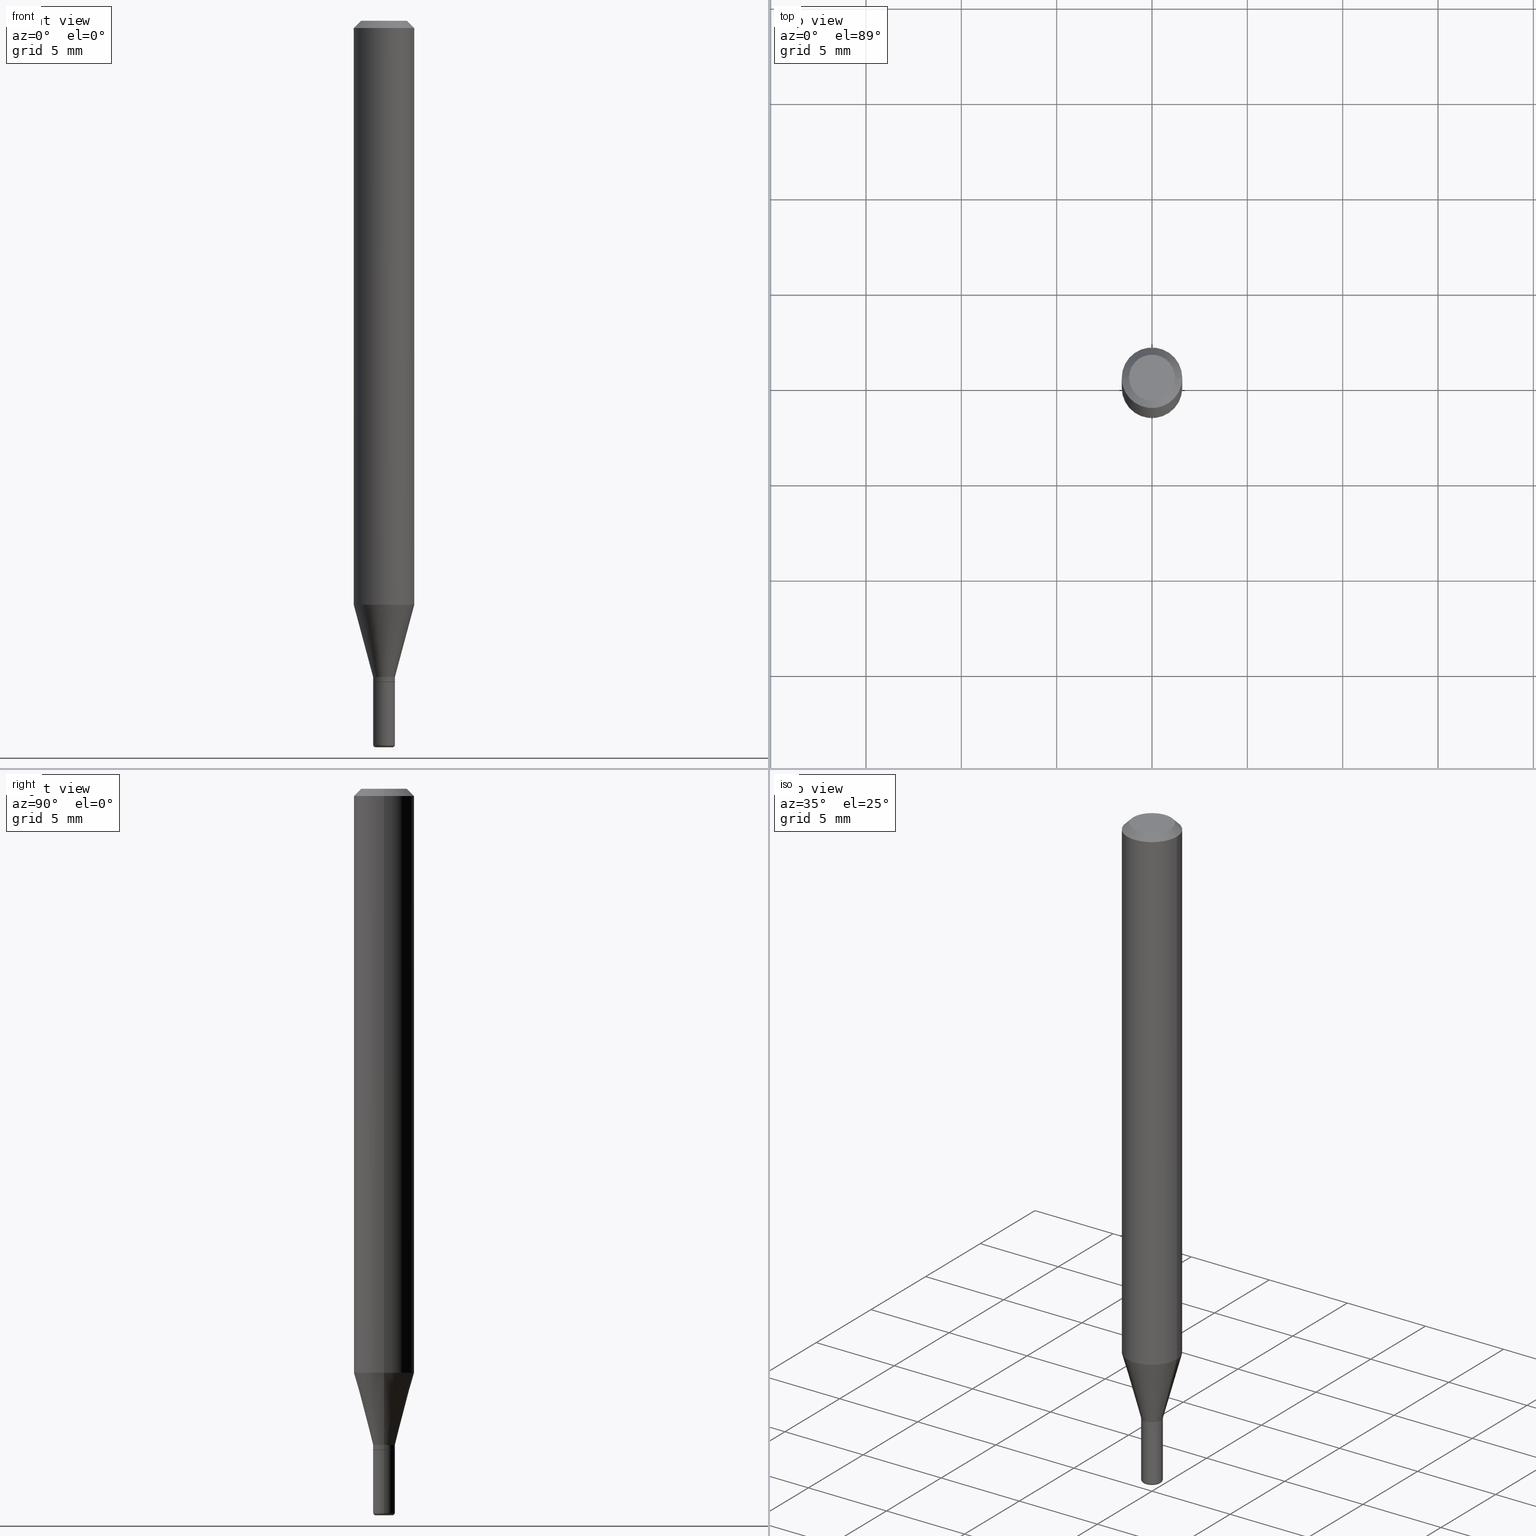
[diagram: canonical four-view strip — front | top / right | iso, engineering-drawing reading convention]
A machine part, canonical four-view strip (front | top / right | iso — engineering-drawing reading convention). The complete STEP part file that produces these views, byte-faithful:
ISO-10303-21;
HEADER;
FILE_DESCRIPTION (( 'STEP AP203' ),
    '1' );
FILE_NAME ('09003.STEP',
    '2024-02-29T21:11:43',
    ( '' ),
    ( '' ),
    'SwSTEP 2.0',
    'SolidWorks 2023',
    '' );
FILE_SCHEMA (( 'CONFIG_CONTROL_DESIGN' ));
ENDSEC;

DATA;
#1 = CONICAL_SURFACE ( 'NONE', #313, 0.02200000000000008546, 0.7853981633972775267 ) ;
#2 = CARTESIAN_POINT ( 'NONE',  ( -0.01749999999999999820, -5.086384757765590495E-15, -1.500000000000000444 ) ) ;
#3 = VERTEX_POINT ( 'NONE', #460 ) ;
#4 = CARTESIAN_POINT ( 'NONE',  ( 0.000000000000000000, 0.000000000000000000, 0.000000000000000000 ) ) ;
#5 = DIRECTION ( 'NONE',  ( -2.445468806185136597E-29, 3.491481338843145583E-15, 1.000000000000000000 ) ) ;
#6 = EDGE_CURVE ( 'NONE', #383, #515, #139, .T. ) ;
#7 = FACE_OUTER_BOUND ( 'NONE', #263, .T. ) ;
#8 = AXIS2_PLACEMENT_3D ( 'NONE', #187, #108, #452 ) ;
#9 = CC_DESIGN_SECURITY_CLASSIFICATION ( #237, ( #419 ) ) ;
#10 = ORIENTED_EDGE ( 'NONE', *, *, #31, .T. ) ;
#11 = DIRECTION ( 'NONE',  ( 1.000000000000000000, -6.982962677686266711E-15, 0.000000000000000000 ) ) ;
#12 = COORDINATED_UNIVERSAL_TIME_OFFSET ( 5, 0, .BEHIND. ) ;
#13 = CYLINDRICAL_SURFACE ( 'NONE', #184, 0.02250000000000008590 ) ;
#14 = ADVANCED_FACE ( 'NONE', ( #420 ), #1, .T. ) ;
#15 = CALENDAR_DATE ( 2024, 29, 2 ) ;
#16 = ORIENTED_EDGE ( 'NONE', *, *, #75, .T. ) ;
#17 = EDGE_CURVE ( 'NONE', #475, #62, #504, .T. ) ;
#18 = CIRCLE ( 'NONE', #403, 0.06250000000000000000 ) ;
#19 = CARTESIAN_POINT ( 'NONE',  ( 3.668203209277706016E-29, -5.237222008264719754E-15, -1.500000000000000444 ) ) ;
#20 = ORIENTED_EDGE ( 'NONE', *, *, #478, .T. ) ;
#21 = LENGTH_MEASURE_WITH_UNIT ( LENGTH_MEASURE( 0.02539999999999999897 ), #503 );
#22 = ORIENTED_EDGE ( 'NONE', *, *, #302, .F. ) ;
#23 = EDGE_CURVE ( 'NONE', #33, #110, #342, .T. ) ;
#24 = CC_DESIGN_DATE_AND_TIME_ASSIGNMENT ( #239, #388, ( #237 ) ) ;
#25 = ORIENTED_EDGE ( 'NONE', *, *, #302, .T. ) ;
#26 = APPROVAL_STATUS ( 'not_yet_approved' ) ;
#27 = CIRCLE ( 'NONE', #319, 0.005000000000000181383 ) ;
#28 = LOCAL_TIME ( 16, 11, 43.00000000000000000, #374 ) ;
#29 = CARTESIAN_POINT ( 'NONE',  ( 3.668203209277632395E-31, -5.237222008264614861E-17, -0.01499999999999970281 ) ) ;
#30 = CARTESIAN_POINT ( 'NONE',  ( 0.02250000000000008937, -4.921242947099413409E-15, -1.364499999999999824 ) ) ;
#31 = EDGE_CURVE ( 'NONE', #309, #132, #282, .T. ) ;
#32 = DIRECTION ( 'NONE',  ( -2.445468806185136597E-29, 3.491481338843145583E-15, 1.000000000000000000 ) ) ;
#33 = VERTEX_POINT ( 'NONE', #296 ) ;
#34 = CALENDAR_DATE ( 2024, 29, 2 ) ;
#35 = ORIENTED_EDGE ( 'NONE', *, *, #415, .T. ) ;
#36 = ORIENTED_EDGE ( 'NONE', *, *, #208, .T. ) ;
#37 = CC_DESIGN_PERSON_AND_ORGANIZATION_ASSIGNMENT ( #343, #54, ( #413 ) ) ;
#38 = DIRECTION ( 'NONE',  ( -2.445468806185136597E-29, 3.491481338843145583E-15, 1.000000000000000000 ) ) ;
#39 = ORIENTED_EDGE ( 'NONE', *, *, #264, .T. ) ;
#40 = AXIS2_PLACEMENT_3D ( 'NONE', #273, #385, #465 ) ;
#41 = VECTOR ( 'NONE', #85, 39.37007874015748143 ) ;
#42 = CARTESIAN_POINT ( 'NONE',  ( 0.02250000000000008590, -1.571166602479415828E-16, 1.097139774554089687E-30 ) ) ;
#43 = DIRECTION ( 'NONE',  ( 1.000000000000000000, -6.982962677686266711E-15, 4.876176775795935793E-29 ) ) ;
#44 = ADVANCED_FACE ( 'NONE', ( #100 ), #301, .T. ) ;
#45 = DIRECTION ( 'NONE',  ( -2.445468806185136597E-29, 3.491481338843145583E-15, 1.000000000000000000 ) ) ;
#46 = CARTESIAN_POINT ( 'NONE',  ( 3.313610232380861411E-29, -4.730957214132463998E-15, -1.355000000000000426 ) ) ;
#47 = ORIENTED_EDGE ( 'NONE', *, *, #232, .T. ) ;
#48 = CARTESIAN_POINT ( 'NONE',  ( 0.000000000000000000, 0.000000000000000000, 0.000000000000000000 ) ) ;
#49 = AXIS2_PLACEMENT_3D ( 'NONE', #137, #339, #417 ) ;
#50 = DIRECTION ( 'NONE',  ( -2.445468806185136597E-29, 3.491481338843145583E-15, 1.000000000000000000 ) ) ;
#51 = MECHANICAL_CONTEXT ( 'NONE', #230, 'mechanical' ) ;
#52 = ORIENTED_EDGE ( 'NONE', *, *, #23, .T. ) ;
#53 = ADVANCED_FACE ( 'NONE', ( #414 ), #362, .T. ) ;
#54 = PERSON_AND_ORGANIZATION_ROLE ( 'design_owner' ) ;
#55 = DIRECTION ( 'NONE',  ( 1.000000000000000000, -6.982962677686265922E-15, 4.876176775795935793E-29 ) ) ;
#56 = DIRECTION ( 'NONE',  ( 1.000000000000000000, -6.982962677686255667E-15, 4.883557194083108977E-29 ) ) ;
#57 = CIRCLE ( 'NONE', #274, 0.02250000000000017958 ) ;
#58 = VECTOR ( 'NONE', #61, 39.37007874015748854 ) ;
#59 = DIRECTION ( 'NONE',  ( 1.000000000000000000, -6.982962677686266711E-15, 4.852736867747365086E-29 ) ) ;
#60 = ADVANCED_FACE ( 'NONE', ( #373 ), #13, .T. ) ;
#61 = DIRECTION ( 'NONE',  ( -0.2588190451025206840, 5.211531920934545520E-15, 0.9659258262890682012 ) ) ;
#62 = VERTEX_POINT ( 'NONE', #337 ) ;
#63 = DIRECTION ( 'NONE',  ( -2.445468806185136597E-29, 3.491481338843145583E-15, 1.000000000000000000 ) ) ;
#64 = ORIENTED_EDGE ( 'NONE', *, *, #425, .F. ) ;
#65 = CARTESIAN_POINT ( 'NONE',  ( -0.02200000000000008546, -4.609552625653671101E-15, -1.364999999999999991 ) ) ;
#66 = FACE_OUTER_BOUND ( 'NONE', #510, .T. ) ;
#67 = APPROVAL_STATUS ( 'not_yet_approved' ) ;
#68 = AXIS2_PLACEMENT_3D ( 'NONE', #180, #455, #103 ) ;
#69 = TOROIDAL_SURFACE ( 'NONE', #437, 0.01749999999999999820, 0.005000000000000179648 ) ;
#70 = EDGE_CURVE ( 'NONE', #132, #309, #287, .T. ) ;
#71 = CARTESIAN_POINT ( 'NONE',  ( 1.571166602479743698E-16, 0.02249999999999523215, -1.364999999999999991 ) ) ;
#72 = ORIENTED_EDGE ( 'NONE', *, *, #121, .T. ) ;
#73 = DIMENSIONAL_EXPONENTS ( 1.000000000000000000, 0.000000000000000000, 0.000000000000000000, 0.000000000000000000, 0.000000000000000000, 0.000000000000000000, 0.000000000000000000 ) ;
#74 = CYLINDRICAL_SURFACE ( 'NONE', #77, 0.06250000000000000000 ) ;
#75 = EDGE_CURVE ( 'NONE', #110, #445, #295, .T. ) ;
#76 = ORIENTED_EDGE ( 'NONE', *, *, #6, .F. ) ;
#77 = AXIS2_PLACEMENT_3D ( 'NONE', #277, #241, #426 ) ;
#78 = CONICAL_SURFACE ( 'NONE', #117, 0.02250000000000007896, 0.2617993877991494078 ) ;
#79 = PERSON_AND_ORGANIZATION ( #246, #459 ) ;
#80 = EDGE_LOOP ( 'NONE', ( #206, #145, #36, #234 ) ) ;
#81 = CC_DESIGN_PERSON_AND_ORGANIZATION_ASSIGNMENT ( #508, #192, ( #419 ) ) ;
#82 = CARTESIAN_POINT ( 'NONE',  ( 0.02250000000000017958, -5.376881261818446351E-15, -1.495000000000000329 ) ) ;
#83 = ORIENTED_EDGE ( 'NONE', *, *, #97, .T. ) ;
#84 = DIRECTION ( 'NONE',  ( -2.445468806185136597E-29, 3.491481338843145583E-15, 1.000000000000000000 ) ) ;
#85 = DIRECTION ( 'NONE',  ( -0.7071067811865479058, 2.468850131082261005E-15, -0.7071067811865471286 ) ) ;
#86 = CONICAL_SURFACE ( 'NONE', #225, 0.02200000000000008546, 0.7853981633972775267 ) ;
#87 = CC_DESIGN_PERSON_AND_ORGANIZATION_ASSIGNMENT ( #79, #315, ( #419 ) ) ;
#88 = FACE_OUTER_BOUND ( 'NONE', #395, .T. ) ;
#89 = CARTESIAN_POINT ( 'NONE',  ( -6.680649051745406845E-45, 9.538196290434862081E-31, 2.731847993664263218E-16 ) ) ;
#90 = ORIENTED_EDGE ( 'NONE', *, *, #92, .T. ) ;
#91 = FACE_OUTER_BOUND ( 'NONE', #229, .T. ) ;
#92 = EDGE_CURVE ( 'NONE', #372, #164, #218, .T. ) ;
#93 = LINE ( 'NONE', #408, #369 ) ;
#94 = CARTESIAN_POINT ( 'NONE',  ( -0.02250000000000008937, 1.598721155460231769E-16, -1.106760395307358334E-30 ) ) ;
#95 = CIRCLE ( 'NONE', #329, 0.04750000000000000749 ) ;
#96 = LOCAL_TIME ( 16, 11, 43.00000000000000000, #350 ) ;
#97 = EDGE_CURVE ( 'NONE', #309, #293, #500, .T. ) ;
#98 = ORIENTED_EDGE ( 'NONE', *, *, #232, .F. ) ;
#99 = CYLINDRICAL_SURFACE ( 'NONE', #49, 0.02250000000000008590 ) ;
#100 = FACE_OUTER_BOUND ( 'NONE', #122, .T. ) ;
#101 = PRODUCT_DEFINITION_SHAPE ( 'NONE', 'NONE',  #288 ) ;
#102 = ADVANCED_BREP_SHAPE_REPRESENTATION ( '09003', ( #464, #123, #125 ), #267 ) ;
#103 = DIRECTION ( 'NONE',  ( 1.000000000000000000, -6.982962677686269077E-15, 0.000000000000000000 ) ) ;
#104 = ADVANCED_FACE ( 'NONE', ( #505 ), #86, .T. ) ;
#105 = DIRECTION ( 'NONE',  ( -2.445468806185136597E-29, 3.491481338843145583E-15, 1.000000000000000000 ) ) ;
#106 = VECTOR ( 'NONE', #466, 39.37007874015748143 ) ;
#107 = LOCAL_TIME ( 16, 11, 43.00000000000000000, #12 ) ;
#108 = DIRECTION ( 'NONE',  ( -2.445468806185136597E-29, 3.491481338843145583E-15, 1.000000000000000000 ) ) ;
#109 =( NAMED_UNIT ( * ) SI_UNIT ( $, .STERADIAN. ) SOLID_ANGLE_UNIT ( ) );
#110 = VERTEX_POINT ( 'NONE', #195 ) ;
#111 = CARTESIAN_POINT ( 'NONE',  ( 3.668203209277706016E-29, -5.237222008264719754E-15, -1.500000000000000444 ) ) ;
#112 = DATE_AND_TIME ( #205, #107 ) ;
#113 = ADVANCED_FACE ( 'NONE', ( #235 ), #428, .F. ) ;
#114 = FACE_OUTER_BOUND ( 'NONE', #262, .T. ) ;
#115 = SECURITY_CLASSIFICATION_LEVEL ( 'unclassified' ) ;
#116 = AXIS2_PLACEMENT_3D ( 'NONE', #390, #199, #507 ) ;
#117 = AXIS2_PLACEMENT_3D ( 'NONE', #46, #215, #363 ) ;
#118 = DIRECTION ( 'NONE',  ( -1.000000000000000000, 6.982962677686265922E-15, -4.876176775795935793E-29 ) ) ;
#119 = DIRECTION ( 'NONE',  ( 1.000000000000000000, -6.982962677686255667E-15, 0.000000000000000000 ) ) ;
#120 = ORIENTED_EDGE ( 'NONE', *, *, #70, .T. ) ;
#121 = EDGE_CURVE ( 'NONE', #515, #257, #158, .T. ) ;
#122 = EDGE_LOOP ( 'NONE', ( #270, #35, #317, #399 ) ) ;
#123 = MANIFOLD_SOLID_BREP ( 'Body-Move/Copy2[2]', #467 ) ;
#124 = AXIS2_PLACEMENT_3D ( 'NONE', #238, #314, #472 ) ;
#125 = AXIS2_PLACEMENT_3D ( 'NONE', #142, #380, #501 ) ;
#126 = ORIENTED_EDGE ( 'NONE', *, *, #400, .T. ) ;
#127 = CARTESIAN_POINT ( 'NONE',  ( 3.655975865246779122E-29, -5.219764601570503141E-15, -1.495000000000000107 ) ) ;
#128 = DIRECTION ( 'NONE',  ( -2.445468806185136877E-29, 3.491481338843145188E-15, 1.000000000000000000 ) ) ;
#129 = LINE ( 'NONE', #286, #283 ) ;
#130 = AXIS2_PLACEMENT_3D ( 'NONE', #48, #444, #360 ) ;
#131 = LINE ( 'NONE', #289, #393 ) ;
#132 = VERTEX_POINT ( 'NONE', #271 ) ;
#133 = EDGE_CURVE ( 'NONE', #515, #383, #375, .T. ) ;
#134 = FACE_OUTER_BOUND ( 'NONE', #284, .T. ) ;
#135 = ORIENTED_EDGE ( 'NONE', *, *, #499, .T. ) ;
#136 = CARTESIAN_POINT ( 'NONE',  ( -0.06250000000000000000, -1.686967792252668322E-15, -0.01499999999999970281 ) ) ;
#137 = CARTESIAN_POINT ( 'NONE',  ( 0.000000000000000000, 0.000000000000000000, 0.000000000000000000 ) ) ;
#138 = DIRECTION ( 'NONE',  ( 1.000000000000000000, -6.982962677686250144E-15, 0.000000000000000000 ) ) ;
#139 = CIRCLE ( 'NONE', #244, 0.01749999999999999820 ) ;
#140 = CC_DESIGN_APPROVAL ( #416, ( #419 ) ) ;
#141 = DIRECTION ( 'NONE',  ( -2.445468806185136597E-29, 3.491481338843145583E-15, 1.000000000000000000 ) ) ;
#142 = CARTESIAN_POINT ( 'NONE',  ( 0.000000000000000000, 0.000000000000000000, 0.000000000000000000 ) ) ;
#143 = ADVANCED_FACE ( 'NONE', ( #114 ), #74, .T. ) ;
#144 = DIRECTION ( 'NONE',  ( -2.445468806185136597E-29, 3.491481338843145583E-15, 1.000000000000000000 ) ) ;
#145 = ORIENTED_EDGE ( 'NONE', *, *, #202, .T. ) ;
#146 =( CONVERSION_BASED_UNIT ( 'INCH', #21 ) LENGTH_UNIT ( ) NAMED_UNIT ( #73 ) );
#147 = DIRECTION ( 'NONE',  ( -2.445468806185136877E-29, 3.491481338843145188E-15, 1.000000000000000000 ) ) ;
#148 = APPLICATION_PROTOCOL_DEFINITION ( 'international standard', 'config_control_design', 1994, #401 ) ;
#149 = CIRCLE ( 'NONE', #354, 0.06250000000000000000 ) ;
#150 = AXIS2_PLACEMENT_3D ( 'NONE', #367, #330, #292 ) ;
#151 = CARTESIAN_POINT ( 'NONE',  ( 3.338064920442711836E-29, -4.765872027520893280E-15, -1.364999999999999991 ) ) ;
#152 = EDGE_CURVE ( 'NONE', #257, #33, #57, .T. ) ;
#153 = SHAPE_DEFINITION_REPRESENTATION ( #101, #102 ) ;
#154 = DIRECTION ( 'NONE',  ( 1.000000000000000000, -6.982962677686250144E-15, 0.000000000000000000 ) ) ;
#155 = DIRECTION ( 'NONE',  ( -2.445468806185136597E-29, 3.491481338843145583E-15, 1.000000000000000000 ) ) ;
#156 = DATE_AND_TIME ( #278, #96 ) ;
#157 = VECTOR ( 'NONE', #159, 39.37007874015748143 ) ;
#158 = CIRCLE ( 'NONE', #124, 0.005000000000000181383 ) ;
#159 = DIRECTION ( 'NONE',  ( 0.7071067811864267805, -2.468850131080992517E-15, 0.7071067811866682540 ) ) ;
#160 = APPROVAL_DATE_TIME ( #156, #177 ) ;
#161 = ORIENTED_EDGE ( 'NONE', *, *, #400, .F. ) ;
#162 = EDGE_CURVE ( 'NONE', #487, #372, #310, .T. ) ;
#163 = CARTESIAN_POINT ( 'NONE',  ( 0.02249999999999999917, -4.922988687768834913E-15, -1.364999999999999991 ) ) ;
#164 = VERTEX_POINT ( 'NONE', #30 ) ;
#165 = ORIENTED_EDGE ( 'NONE', *, *, #415, .F. ) ;
#166 = DIRECTION ( 'NONE',  ( 1.000000000000000000, -6.982962677686269077E-15, 0.000000000000000000 ) ) ;
#167 = VECTOR ( 'NONE', #366, 39.37007874015748143 ) ;
#168 = ADVANCED_FACE ( 'NONE', ( #509 ), #349, .F. ) ;
#169 = DIRECTION ( 'NONE',  ( 1.000000000000000000, -6.982962677686255667E-15, 4.883557194083108977E-29 ) ) ;
#170 = ORIENTED_EDGE ( 'NONE', *, *, #499, .F. ) ;
#171 = FACE_OUTER_BOUND ( 'NONE', #361, .T. ) ;
#172 = CYLINDRICAL_SURFACE ( 'NONE', #193, 0.06250000000000000000 ) ;
#173 = AXIS2_PLACEMENT_3D ( 'NONE', #307, #50, #59 ) ;
#174 = AXIS2_PLACEMENT_3D ( 'NONE', #492, #186, #259 ) ;
#175 = DIRECTION ( 'NONE',  ( -2.445468806185136597E-29, 3.491481338843145583E-15, 1.000000000000000000 ) ) ;
#176 = ORIENTED_EDGE ( 'NONE', *, *, #396, .T. ) ;
#177 = APPROVAL ( #67, 'UNSPECIFIED' ) ;
#178 = CARTESIAN_POINT ( 'NONE',  ( 0.06250000000000000000, -4.646176951478207651E-15, -1.205717967697245596 ) ) ;
#179 = DIRECTION ( 'NONE',  ( 0.7071067811865479058, -7.319954787623257623E-15, -0.7071067811865471286 ) ) ;
#180 = CARTESIAN_POINT ( 'NONE',  ( 3.338064920442711836E-29, -4.765872027520893280E-15, -1.364999999999999991 ) ) ;
#181 = LINE ( 'NONE', #269, #258 ) ;
#182 = ORIENTED_EDGE ( 'NONE', *, *, #446, .F. ) ;
#183 = CLOSED_SHELL ( 'NONE', ( #473, #253, #113, #44, #379, #433 ) ) ;
#184 = AXIS2_PLACEMENT_3D ( 'NONE', #268, #63, #55 ) ;
#185 = APPROVAL_PERSON_ORGANIZATION ( #514, #177, #391 ) ;
#186 = DIRECTION ( 'NONE',  ( -2.438088387897960049E-29, 3.491481338843145188E-15, 1.000000000000000000 ) ) ;
#187 = CARTESIAN_POINT ( 'NONE',  ( 0.000000000000000000, 0.000000000000000000, 0.000000000000000000 ) ) ;
#188 = DIRECTION ( 'NONE',  ( -2.445468806185136597E-29, 3.491481338843145583E-15, 1.000000000000000000 ) ) ;
#189 = ORIENTED_EDGE ( 'NONE', *, *, #162, .T. ) ;
#190 = EDGE_CURVE ( 'NONE', #255, #463, #486, .T. ) ;
#191 = ORIENTED_EDGE ( 'NONE', *, *, #17, .T. ) ;
#192 = PERSON_AND_ORGANIZATION_ROLE ( 'design_supplier' ) ;
#193 = AXIS2_PLACEMENT_3D ( 'NONE', #4, #38, #43 ) ;
#194 = AXIS2_PLACEMENT_3D ( 'NONE', #209, #484, #332 ) ;
#195 = CARTESIAN_POINT ( 'NONE',  ( -0.02249999999999999917, -4.832946198999675921E-15, -1.364999999999999991 ) ) ;
#196 = DIRECTION ( 'NONE',  ( 1.000000000000000000, -6.982962677686261977E-15, 0.000000000000000000 ) ) ;
#197 = APPROVAL_DATE_TIME ( #427, #416 ) ;
#198 = ORIENTED_EDGE ( 'NONE', *, *, #396, .F. ) ;
#199 = DIRECTION ( 'NONE',  ( -2.445468806185136597E-29, 3.491481338843145583E-15, 1.000000000000000000 ) ) ;
#200 = DATE_TIME_ROLE ( 'creation_date' ) ;
#201 = ORIENTED_EDGE ( 'NONE', *, *, #327, .F. ) ;
#202 = EDGE_CURVE ( 'NONE', #487, #290, #376, .T. ) ;
#203 = AXIS2_PLACEMENT_3D ( 'NONE', #481, #220, #442 ) ;
#204 = PRODUCT_RELATED_PRODUCT_CATEGORY ( 'detail', '', ( #413 ) ) ;
#205 = CALENDAR_DATE ( 2024, 29, 2 ) ;
#206 = ORIENTED_EDGE ( 'NONE', *, *, #162, .F. ) ;
#207 = EDGE_LOOP ( 'NONE', ( #64, #90, #47, #243 ) ) ;
#208 = EDGE_CURVE ( 'NONE', #290, #164, #353, .T. ) ;
#209 = CARTESIAN_POINT ( 'NONE',  ( 3.668203209277632395E-31, -5.237222008264614861E-17, -0.01499999999999970281 ) ) ;
#210 = EDGE_LOOP ( 'NONE', ( #201, #440 ) ) ;
#211 = AXIS2_PLACEMENT_3D ( 'NONE', #404, #482, #166 ) ;
#212 = CARTESIAN_POINT ( 'NONE',  ( -0.01749999999999999820, -5.095419622812485892E-15, -1.495000000000000107 ) ) ;
#213 = DIRECTION ( 'NONE',  ( -2.445468806185136597E-29, 3.491481338843145583E-15, 1.000000000000000000 ) ) ;
#214 = DIRECTION ( 'NONE',  ( 1.000000000000000000, -6.982962677686255667E-15, 0.000000000000000000 ) ) ;
#215 = DIRECTION ( 'NONE',  ( -2.445468806185136597E-29, 3.491481338843145583E-15, 1.000000000000000000 ) ) ;
#216 = EDGE_CURVE ( 'NONE', #463, #255, #149, .T. ) ;
#217 = CC_DESIGN_PERSON_AND_ORGANIZATION_ASSIGNMENT ( #312, #355, ( #237 ) ) ;
#218 = CIRCLE ( 'NONE', #303, 0.02250000000000008937 ) ;
#219 = EDGE_LOOP ( 'NONE', ( #435, #120, #83, #358 ) ) ;
#220 = DIRECTION ( 'NONE',  ( -2.445468806185136597E-29, 3.491481338843145583E-15, 1.000000000000000000 ) ) ;
#221 = DIRECTION ( 'NONE',  ( 1.000000000000000000, -6.982962677686286432E-15, 0.000000000000000000 ) ) ;
#222 = APPROVAL_ROLE ( '' ) ;
#223 = DIRECTION ( 'NONE',  ( -2.445468806185136597E-29, 3.491481338843145583E-15, 1.000000000000000000 ) ) ;
#224 = CARTESIAN_POINT ( 'NONE',  ( 3.313610232380861411E-29, -4.730957214132463998E-15, -1.355000000000000426 ) ) ;
#225 = AXIS2_PLACEMENT_3D ( 'NONE', #151, #32, #196 ) ;
#226 = AXIS2_PLACEMENT_3D ( 'NONE', #261, #144, #280 ) ;
#227 = CARTESIAN_POINT ( 'NONE',  ( 0.01749999999999999820, -5.359423855124228949E-15, -1.500000000000000444 ) ) ;
#228 = CC_DESIGN_PERSON_AND_ORGANIZATION_ASSIGNMENT ( #494, #462, ( #288 ) ) ;
#229 = EDGE_LOOP ( 'NONE', ( #470, #52, #318, #359 ) ) ;
#230 = APPLICATION_CONTEXT ( 'configuration controlled 3d designs of mechanical parts and assemblies' ) ;
#231 = CARTESIAN_POINT ( 'NONE',  ( -0.02200000000000008546, -4.606903398479559111E-15, -1.364999999999999991 ) ) ;
#232 = EDGE_CURVE ( 'NONE', #164, #309, #405, .T. ) ;
#233 = ORIENTED_EDGE ( 'NONE', *, *, #17, .F. ) ;
#234 = ORIENTED_EDGE ( 'NONE', *, *, #92, .F. ) ;
#235 = FACE_OUTER_BOUND ( 'NONE', #410, .T. ) ;
#236 = AXIS2_PLACEMENT_3D ( 'NONE', #254, #406, #169 ) ;
#237 = SECURITY_CLASSIFICATION ( '', '', #115 ) ;
#238 = CARTESIAN_POINT ( 'NONE',  ( 0.01749999999999999820, -5.341966448430012335E-15, -1.495000000000000107 ) ) ;
#239 = DATE_AND_TIME ( #506, #430 ) ;
#240 = ORIENTED_EDGE ( 'NONE', *, *, #216, .T. ) ;
#241 = DIRECTION ( 'NONE',  ( -2.445468806185136597E-29, 3.491481338843145583E-15, 1.000000000000000000 ) ) ;
#242 = ORIENTED_EDGE ( 'NONE', *, *, #364, .F. ) ;
#243 = ORIENTED_EDGE ( 'NONE', *, *, #70, .F. ) ;
#244 = AXIS2_PLACEMENT_3D ( 'NONE', #19, #188, #138 ) ;
#245 = CC_DESIGN_APPROVAL ( #305, ( #288 ) ) ;
#246 = PERSON ( 'UNSPECIFIED', 'UNSPECIFIED', 'UNSPECIFIED', ('UNSPECIFIED'), ('UNSPECIFIED'), ('UNSPECIFIED') ) ;
#247 = ORIENTED_EDGE ( 'NONE', *, *, #461, .F. ) ;
#248 = DIRECTION ( 'NONE',  ( 7.105427357601001859E-15, 1.000000000000000000, -3.491481338843145583E-15 ) ) ;
#249 = EDGE_LOOP ( 'NONE', ( #281, #189, #331, #392 ) ) ;
#250 = DIRECTION ( 'NONE',  ( 1.000000000000000000, -6.982962677686270655E-15, 0.000000000000000000 ) ) ;
#251 = CARTESIAN_POINT ( 'NONE',  ( 0.06250000000000000000, -4.888073874380378612E-16, -0.01499999999999970281 ) ) ;
#252 = DIRECTION ( 'NONE',  ( -2.445468806185136597E-29, 3.491481338843145583E-15, 1.000000000000000000 ) ) ;
#253 = ADVANCED_FACE ( 'NONE', ( #91 ), #322, .T. ) ;
#254 = CARTESIAN_POINT ( 'NONE',  ( 3.655975865246779122E-29, -5.219764601570503141E-15, -1.495000000000000107 ) ) ;
#255 = VERTEX_POINT ( 'NONE', #136 ) ;
#256 = DIRECTION ( 'NONE',  ( 1.000000000000000000, -6.982962677686266711E-15, 4.852736867747365086E-29 ) ) ;
#257 = VERTEX_POINT ( 'NONE', #82 ) ;
#258 = VECTOR ( 'NONE', #450, 39.37007874015748143 ) ;
#259 = DIRECTION ( 'NONE',  ( 1.000000000000000000, -6.982962677686265922E-15, 4.876176775795935793E-29 ) ) ;
#260 = ADVANCED_FACE ( 'NONE', ( #7 ), #172, .T. ) ;
#261 = CARTESIAN_POINT ( 'NONE',  ( 3.313610232380861411E-29, -4.730957214132463998E-15, -1.355000000000000426 ) ) ;
#262 = EDGE_LOOP ( 'NONE', ( #126, #279, #316, #198 ) ) ;
#263 = EDGE_LOOP ( 'NONE', ( #247, #39, #176, #449 ) ) ;
#264 = EDGE_CURVE ( 'NONE', #3, #293, #18, .T. ) ;
#265 = PERSON_AND_ORGANIZATION ( #246, #459 ) ;
#266 = DIRECTION ( 'NONE',  ( 1.000000000000000000, -6.982962677686283277E-15, 0.000000000000000000 ) ) ;
#267 =( GEOMETRIC_REPRESENTATION_CONTEXT ( 3 ) GLOBAL_UNCERTAINTY_ASSIGNED_CONTEXT ( ( #325 ) ) GLOBAL_UNIT_ASSIGNED_CONTEXT ( ( #146, #453, #109 ) ) REPRESENTATION_CONTEXT ( 'NONE', 'WORKASPACE' ) );
#268 = CARTESIAN_POINT ( 'NONE',  ( 0.000000000000000000, 0.000000000000000000, 0.000000000000000000 ) ) ;
#269 = CARTESIAN_POINT ( 'NONE',  ( 0.02250000000000008937, -1.571166602479416074E-16, 1.097139774554090038E-30 ) ) ;
#270 = ORIENTED_EDGE ( 'NONE', *, *, #23, .F. ) ;
#271 = CARTESIAN_POINT ( 'NONE',  ( -0.02250000000000007896, -4.168368836429596353E-15, -1.355000000000000426 ) ) ;
#272 = PERSON_AND_ORGANIZATION ( #246, #459 ) ;
#273 = CARTESIAN_POINT ( 'NONE',  ( 3.316907271900976589E-16, 0.04750000000000000749, -2.925296391183627249E-17 ) ) ;
#274 = AXIS2_PLACEMENT_3D ( 'NONE', #387, #431, #119 ) ;
#275 = AXIS2_PLACEMENT_3D ( 'NONE', #285, #84, #250 ) ;
#276 = EDGE_CURVE ( 'NONE', #164, #372, #476, .T. ) ;
#277 = CARTESIAN_POINT ( 'NONE',  ( 0.000000000000000000, 0.000000000000000000, 0.000000000000000000 ) ) ;
#278 = CALENDAR_DATE ( 2024, 29, 2 ) ;
#279 = ORIENTED_EDGE ( 'NONE', *, *, #461, .T. ) ;
#280 = DIRECTION ( 'NONE',  ( 1.000000000000000000, -6.982962677686286432E-15, 0.000000000000000000 ) ) ;
#281 = ORIENTED_EDGE ( 'NONE', *, *, #327, .T. ) ;
#282 = CIRCLE ( 'NONE', #512, 0.02250000000000007896 ) ;
#283 = VECTOR ( 'NONE', #443, 39.37007874015748143 ) ;
#284 = EDGE_LOOP ( 'NONE', ( #242, #135, #240, #182 ) ) ;
#285 = CARTESIAN_POINT ( 'NONE',  ( 2.948545679060552191E-29, -4.209741784122815192E-15, -1.205717967697245596 ) ) ;
#286 = CARTESIAN_POINT ( 'NONE',  ( -0.02250000000000008590, 1.598721155460231522E-16, -1.106760395307357984E-30 ) ) ;
#287 = CIRCLE ( 'NONE', #458, 0.02250000000000007896 ) ;
#288 = PRODUCT_DEFINITION ( 'UNKNOWN', '', #419, #489 ) ;
#289 = CARTESIAN_POINT ( 'NONE',  ( 0.06250000000000000000, -4.364351673553916694E-16, 3.047610484872459871E-30 ) ) ;
#290 = VERTEX_POINT ( 'NONE', #439 ) ;
#291 = LINE ( 'NONE', #418, #41 ) ;
#292 = DIRECTION ( 'NONE',  ( 1.000000000000000000, -6.982962677686265922E-15, 4.876176775795935793E-29 ) ) ;
#293 = VERTEX_POINT ( 'NONE', #178 ) ;
#294 = CARTESIAN_POINT ( 'NONE',  ( 0.06250000000000000000, -4.811533449433669144E-16, -0.01499999999999970281 ) ) ;
#295 = CIRCLE ( 'NONE', #68, 0.02249999999999999917 ) ;
#296 = CARTESIAN_POINT ( 'NONE',  ( -0.02250000000000017958, -4.832946198999673555E-15, -1.495000000000000329 ) ) ;
#297 = CIRCLE ( 'NONE', #477, 0.02250000000000017958 ) ;
#298 = CARTESIAN_POINT ( 'NONE',  ( -0.02250000000000007896, -4.571085098586440920E-15, -1.355000000000000426 ) ) ;
#299 = DIRECTION ( 'NONE',  ( 1.000000000000000000, -6.982962677686286432E-15, 0.000000000000000000 ) ) ;
#300 = DIRECTION ( 'NONE',  ( -2.445468806185136597E-29, 3.491481338843145583E-15, 1.000000000000000000 ) ) ;
#301 = CYLINDRICAL_SURFACE ( 'NONE', #8, 0.02250000000000008937 ) ;
#302 = EDGE_CURVE ( 'NONE', #383, #33, #27, .T. ) ;
#303 = AXIS2_PLACEMENT_3D ( 'NONE', #377, #384, #266 ) ;
#304 = CONICAL_SURFACE ( 'NONE', #226, 0.02250000000000007896, 0.2617993877991494078 ) ;
#305 = APPROVAL ( #306, 'UNSPECIFIED' ) ;
#306 = APPROVAL_STATUS ( 'not_yet_approved' ) ;
#307 = CARTESIAN_POINT ( 'NONE',  ( -6.680649051745406845E-45, 9.538196290434862081E-31, 2.731847993664263218E-16 ) ) ;
#308 = APPROVAL_ROLE ( '' ) ;
#309 = VERTEX_POINT ( 'NONE', #485 ) ;
#310 = LINE ( 'NONE', #65, #106 ) ;
#311 = DIRECTION ( 'NONE',  ( 1.000000000000000000, -6.982962677686266711E-15, 0.000000000000000000 ) ) ;
#312 = PERSON_AND_ORGANIZATION ( #246, #459 ) ;
#313 = AXIS2_PLACEMENT_3D ( 'NONE', #382, #300, #497 ) ;
#314 = DIRECTION ( 'NONE',  ( -6.982962677686266711E-15, -1.000000000000000000, 3.491481338843145583E-15 ) ) ;
#315 = PERSON_AND_ORGANIZATION_ROLE ( 'creator' ) ;
#316 = ORIENTED_EDGE ( 'NONE', *, *, #216, .F. ) ;
#317 = ORIENTED_EDGE ( 'NONE', *, *, #517, .T. ) ;
#318 = ORIENTED_EDGE ( 'NONE', *, *, #471, .F. ) ;
#319 = AXIS2_PLACEMENT_3D ( 'NONE', #212, #248, #365 ) ;
#320 = FACE_OUTER_BOUND ( 'NONE', #407, .T. ) ;
#321 = LOCAL_TIME ( 16, 11, 43.00000000000000000, #432 ) ;
#322 = CYLINDRICAL_SURFACE ( 'NONE', #130, 0.02250000000000008937 ) ;
#323 = EDGE_LOOP ( 'NONE', ( #191, #502 ) ) ;
#324 = DIRECTION ( 'NONE',  ( -2.445468806185136877E-29, 3.491481338843145188E-15, 1.000000000000000000 ) ) ;
#325 = UNCERTAINTY_MEASURE_WITH_UNIT (LENGTH_MEASURE( 1.000000000000000082E-05 ), #146, 'distance_accuracy_value', 'NONE');
#326 = DIRECTION ( 'NONE',  ( 1.000000000000000000, -6.982962677686270655E-15, 0.000000000000000000 ) ) ;
#327 = EDGE_CURVE ( 'NONE', #290, #487, #469, .T. ) ;
#328 = DIRECTION ( 'NONE',  ( 1.000000000000000000, -6.982962677686283277E-15, 0.000000000000000000 ) ) ;
#329 = AXIS2_PLACEMENT_3D ( 'NONE', #89, #175, #256 ) ;
#330 = DIRECTION ( 'NONE',  ( -2.438088387897960049E-29, 3.491481338843145188E-15, 1.000000000000000000 ) ) ;
#331 = ORIENTED_EDGE ( 'NONE', *, *, #276, .F. ) ;
#332 = DIRECTION ( 'NONE',  ( -1.000000000000000000, 6.982962677686266711E-15, 0.000000000000000000 ) ) ;
#333 = LINE ( 'NONE', #294, #347 ) ;
#334 = DIRECTION ( 'NONE',  ( 0.2588190451025206840, 1.565188264969626504E-15, 0.9659258262890682012 ) ) ;
#335 = DATE_AND_TIME ( #15, #28 ) ;
#336 = AXIS2_PLACEMENT_3D ( 'NONE', #29, #155, #311 ) ;
#337 = CARTESIAN_POINT ( 'NONE',  ( 0.04750000000000000749, -4.035134999187568762E-16, 2.731847993664288856E-16 ) ) ;
#338 = CIRCLE ( 'NONE', #275, 0.06250000000000000000 ) ;
#339 = DIRECTION ( 'NONE',  ( -2.445468806185136597E-29, 3.491481338843145583E-15, 1.000000000000000000 ) ) ;
#340 = DIRECTION ( 'NONE',  ( 2.445468806185136597E-29, -3.491481338843145583E-15, -1.000000000000000000 ) ) ;
#341 = APPROVAL_DATE_TIME ( #335, #305 ) ;
#342 = LINE ( 'NONE', #94, #368 ) ;
#343 = PERSON_AND_ORGANIZATION ( #246, #459 ) ;
#344 = ORIENTED_EDGE ( 'NONE', *, *, #97, .F. ) ;
#345 = CARTESIAN_POINT ( 'NONE',  ( 0.02250000000000007896, -4.888073874380405630E-15, -1.355000000000000426 ) ) ;
#346 = AXIS2_PLACEMENT_3D ( 'NONE', #457, #340, #422 ) ;
#347 = VECTOR ( 'NONE', #179, 39.37007874015748143 ) ;
#348 = COORDINATED_UNIVERSAL_TIME_OFFSET ( 5, 0, .BEHIND. ) ;
#349 = PLANE ( 'NONE',  #40 ) ;
#350 = COORDINATED_UNIVERSAL_TIME_OFFSET ( 5, 0, .BEHIND. ) ;
#351 = DIRECTION ( 'NONE',  ( 2.438088387897960049E-29, -3.491481338843145188E-15, -1.000000000000000000 ) ) ;
#352 = ORIENTED_EDGE ( 'NONE', *, *, #276, .T. ) ;
#353 = LINE ( 'NONE', #513, #157 ) ;
#354 = AXIS2_PLACEMENT_3D ( 'NONE', #398, #252, #11 ) ;
#355 = PERSON_AND_ORGANIZATION_ROLE ( 'classification_officer' ) ;
#356 = APPROVAL_PERSON_ORGANIZATION ( #265, #305, #222 ) ;
#357 = ORIENTED_EDGE ( 'NONE', *, *, #6, .T. ) ;
#358 = ORIENTED_EDGE ( 'NONE', *, *, #264, .F. ) ;
#359 = ORIENTED_EDGE ( 'NONE', *, *, #517, .F. ) ;
#360 = DIRECTION ( 'NONE',  ( 1.000000000000000000, -6.982962677686265922E-15, 4.876176775795936353E-29 ) ) ;
#361 = EDGE_LOOP ( 'NONE', ( #22, #357, #72, #165 ) ) ;
#362 = CONICAL_SURFACE ( 'NONE', #346, 0.06250000000000000000, 0.7853981633974488341 ) ;
#363 = DIRECTION ( 'NONE',  ( 1.000000000000000000, -6.982962677686286432E-15, 0.000000000000000000 ) ) ;
#364 = EDGE_CURVE ( 'NONE', #62, #475, #95, .T. ) ;
#365 = DIRECTION ( 'NONE',  ( -1.000000000000000000, 7.105427357601055501E-15, 0.000000000000000000 ) ) ;
#366 = DIRECTION ( 'NONE',  ( -2.445468806185136877E-29, 3.491481338843145188E-15, 1.000000000000000000 ) ) ;
#367 = CARTESIAN_POINT ( 'NONE',  ( 3.582686580359767159E-29, -5.359686688179454114E-15, -1.500000000000000444 ) ) ;
#368 = VECTOR ( 'NONE', #147, 39.37007874015748143 ) ;
#369 = VECTOR ( 'NONE', #324, 39.37007874015748143 ) ;
#370 = ORIENTED_EDGE ( 'NONE', *, *, #152, .F. ) ;
#371 = PLANE ( 'NONE',  #150 ) ;
#372 = VERTEX_POINT ( 'NONE', #402 ) ;
#373 = FACE_OUTER_BOUND ( 'NONE', #493, .T. ) ;
#374 = COORDINATED_UNIVERSAL_TIME_OFFSET ( 5, 0, .BEHIND. ) ;
#375 = CIRCLE ( 'NONE', #495, 0.01749999999999999820 ) ;
#376 = CIRCLE ( 'NONE', #116, 0.02200000000000008546 ) ;
#377 = CARTESIAN_POINT ( 'NONE',  ( 3.336842186039618474E-29, -4.764126286851472566E-15, -1.364499999999999824 ) ) ;
#378 = APPROVAL_PERSON_ORGANIZATION ( #272, #416, #308 ) ;
#379 = ADVANCED_FACE ( 'NONE', ( #171 ), #451, .T. ) ;
#380 = DIRECTION ( 'NONE',  ( 0.000000000000000000, 0.000000000000000000, 1.000000000000000000 ) ) ;
#381 = ADVANCED_FACE ( 'NONE', ( #134 ), #409, .T. ) ;
#382 = CARTESIAN_POINT ( 'NONE',  ( 3.338064920442711836E-29, -4.765872027520893280E-15, -1.364999999999999991 ) ) ;
#383 = VERTEX_POINT ( 'NONE', #2 ) ;
#384 = DIRECTION ( 'NONE',  ( -2.445468806185136597E-29, 3.491481338843145583E-15, 1.000000000000000000 ) ) ;
#385 = DIRECTION ( 'NONE',  ( 2.438088387897960049E-29, -3.491481338843145188E-15, -1.000000000000000000 ) ) ;
#386 = AXIS2_PLACEMENT_3D ( 'NONE', #488, #213, #328 ) ;
#387 = CARTESIAN_POINT ( 'NONE',  ( 3.655975865246779683E-29, -5.219764601570503930E-15, -1.495000000000000329 ) ) ;
#388 = DATE_TIME_ROLE ( 'classification_date' ) ;
#389 = ORIENTED_EDGE ( 'NONE', *, *, #31, .F. ) ;
#390 = CARTESIAN_POINT ( 'NONE',  ( 3.338064920442711836E-29, -4.765872027520893280E-15, -1.364999999999999991 ) ) ;
#391 = APPROVAL_ROLE ( '' ) ;
#392 = ORIENTED_EDGE ( 'NONE', *, *, #208, .F. ) ;
#393 = VECTOR ( 'NONE', #128, 39.37007874015748143 ) ;
#394 = CIRCLE ( 'NONE', #211, 0.02249999999999999917 ) ;
#395 = EDGE_LOOP ( 'NONE', ( #424, #76 ) ) ;
#396 = EDGE_CURVE ( 'NONE', #293, #463, #131, .T. ) ;
#397 = ORIENTED_EDGE ( 'NONE', *, *, #121, .F. ) ;
#398 = CARTESIAN_POINT ( 'NONE',  ( 3.668203209277632395E-31, -5.237222008264614861E-17, -0.01499999999999970281 ) ) ;
#399 = ORIENTED_EDGE ( 'NONE', *, *, #75, .F. ) ;
#400 = EDGE_CURVE ( 'NONE', #293, #3, #338, .T. ) ;
#401 = APPLICATION_CONTEXT ( 'configuration controlled 3d designs of mechanical parts and assemblies' ) ;
#402 = CARTESIAN_POINT ( 'NONE',  ( -0.02250000000000008937, -4.604254171305447910E-15, -1.364499999999999824 ) ) ;
#403 = AXIS2_PLACEMENT_3D ( 'NONE', #447, #5, #326 ) ;
#404 = CARTESIAN_POINT ( 'NONE',  ( 3.338064920442711836E-29, -4.765872027520893280E-15, -1.364999999999999991 ) ) ;
#405 = LINE ( 'NONE', #42, #167 ) ;
#406 = DIRECTION ( 'NONE',  ( -2.445468806185136597E-29, 3.491481338843145583E-15, 1.000000000000000000 ) ) ;
#407 = EDGE_LOOP ( 'NONE', ( #474, #25, #370, #397 ) ) ;
#408 = CARTESIAN_POINT ( 'NONE',  ( -0.06250000000000000000, 4.440892098500626162E-16, -3.074334431409316114E-30 ) ) ;
#409 = CONICAL_SURFACE ( 'NONE', #194, 0.06250000000000000000, 0.7853981633974488341 ) ;
#410 = EDGE_LOOP ( 'NONE', ( #518, #16 ) ) ;
#411 = CARTESIAN_POINT ( 'NONE',  ( 3.313610232380861411E-29, -4.730957214132463998E-15, -1.355000000000000426 ) ) ;
#412 = APPLICATION_PROTOCOL_DEFINITION ( 'international standard', 'config_control_design', 1994, #230 ) ;
#413 = PRODUCT ( '09003', '09003', '', ( #51 ) ) ;
#414 = FACE_OUTER_BOUND ( 'NONE', #516, .T. ) ;
#415 = EDGE_CURVE ( 'NONE', #33, #257, #297, .T. ) ;
#416 = APPROVAL ( #26, 'UNSPECIFIED' ) ;
#417 = DIRECTION ( 'NONE',  ( 1.000000000000000000, -6.982962677686265922E-15, 4.876176775795935793E-29 ) ) ;
#418 = CARTESIAN_POINT ( 'NONE',  ( -0.06250000000000000000, 3.840629472727455270E-16, -0.01499999999999970281 ) ) ;
#419 = PRODUCT_DEFINITION_FORMATION_WITH_SPECIFIED_SOURCE ( 'ANY', '', #413, .NOT_KNOWN. ) ;
#420 = FACE_OUTER_BOUND ( 'NONE', #80, .T. ) ;
#421 = LINE ( 'NONE', #298, #58 ) ;
#422 = DIRECTION ( 'NONE',  ( -1.000000000000000000, 6.982962677686266711E-15, 0.000000000000000000 ) ) ;
#423 = FACE_OUTER_BOUND ( 'NONE', #207, .T. ) ;
#424 = ORIENTED_EDGE ( 'NONE', *, *, #133, .F. ) ;
#425 = EDGE_CURVE ( 'NONE', #372, #132, #129, .T. ) ;
#426 = DIRECTION ( 'NONE',  ( 1.000000000000000000, -6.982962677686266711E-15, 4.876176775795935793E-29 ) ) ;
#427 = DATE_AND_TIME ( #34, #321 ) ;
#428 = PLANE ( 'NONE',  #436 ) ;
#429 = VECTOR ( 'NONE', #334, 39.37007874015748854 ) ;
#430 = LOCAL_TIME ( 16, 11, 43.00000000000000000, #348 ) ;
#431 = DIRECTION ( 'NONE',  ( -2.445468806185136597E-29, 3.491481338843145583E-15, 1.000000000000000000 ) ) ;
#432 = COORDINATED_UNIVERSAL_TIME_OFFSET ( 5, 0, .BEHIND. ) ;
#433 = ADVANCED_FACE ( 'NONE', ( #88 ), #371, .F. ) ;
#434 = CC_DESIGN_DATE_AND_TIME_ASSIGNMENT ( #112, #200, ( #288 ) ) ;
#435 = ORIENTED_EDGE ( 'NONE', *, *, #478, .F. ) ;
#436 = AXIS2_PLACEMENT_3D ( 'NONE', #71, #351, #118 ) ;
#437 = AXIS2_PLACEMENT_3D ( 'NONE', #127, #105, #56 ) ;
#438 = ORIENTED_EDGE ( 'NONE', *, *, #425, .T. ) ;
#439 = CARTESIAN_POINT ( 'NONE',  ( 0.02200000000000008546, -4.919497206429991905E-15, -1.364999999999999991 ) ) ;
#440 = ORIENTED_EDGE ( 'NONE', *, *, #202, .F. ) ;
#441 = ADVANCED_FACE ( 'NONE', ( #66 ), #304, .T. ) ;
#442 = DIRECTION ( 'NONE',  ( 1.000000000000000000, -6.982962677686261977E-15, 0.000000000000000000 ) ) ;
#443 = DIRECTION ( 'NONE',  ( -2.445468806185136877E-29, 3.491481338843145188E-15, 1.000000000000000000 ) ) ;
#444 = DIRECTION ( 'NONE',  ( -2.445468806185136597E-29, 3.491481338843145583E-15, 1.000000000000000000 ) ) ;
#445 = VERTEX_POINT ( 'NONE', #163 ) ;
#446 = EDGE_CURVE ( 'NONE', #475, #255, #291, .T. ) ;
#447 = CARTESIAN_POINT ( 'NONE',  ( 2.948545679060552191E-29, -4.209741784122815192E-15, -1.205717967697245596 ) ) ;
#448 = FACE_OUTER_BOUND ( 'NONE', #219, .T. ) ;
#449 = ORIENTED_EDGE ( 'NONE', *, *, #190, .F. ) ;
#450 = DIRECTION ( 'NONE',  ( -2.445468806185136877E-29, 3.491481338843145188E-15, 1.000000000000000000 ) ) ;
#451 = TOROIDAL_SURFACE ( 'NONE', #236, 0.01749999999999999820, 0.005000000000000179648 ) ;
#452 = DIRECTION ( 'NONE',  ( 1.000000000000000000, -6.982962677686265922E-15, 4.876176775795936353E-29 ) ) ;
#453 =( NAMED_UNIT ( * ) PLANE_ANGLE_UNIT ( ) SI_UNIT ( $, .RADIAN. ) );
#454 = ADVANCED_FACE ( 'NONE', ( #448 ), #78, .T. ) ;
#455 = DIRECTION ( 'NONE',  ( -2.445468806185136597E-29, 3.491481338843145583E-15, 1.000000000000000000 ) ) ;
#456 = PLANE ( 'NONE',  #174 ) ;
#457 = CARTESIAN_POINT ( 'NONE',  ( 3.668203209277632395E-31, -5.237222008264614861E-17, -0.01499999999999970281 ) ) ;
#458 = AXIS2_PLACEMENT_3D ( 'NONE', #224, #141, #299 ) ;
#459 = ORGANIZATION ( 'UNSPECIFIED', 'UNSPECIFIED', '' ) ;
#460 = CARTESIAN_POINT ( 'NONE',  ( -0.06250000000000000000, -3.765652574272752576E-15, -1.205717967697245596 ) ) ;
#461 = EDGE_CURVE ( 'NONE', #3, #255, #93, .T. ) ;
#462 = PERSON_AND_ORGANIZATION_ROLE ( 'creator' ) ;
#463 = VERTEX_POINT ( 'NONE', #251 ) ;
#464 = MANIFOLD_SOLID_BREP ( 'Body-Move/Copy2[1]', #183 ) ;
#465 = DIRECTION ( 'NONE',  ( -1.000000000000000000, 6.982962677686265922E-15, -4.876176775795935793E-29 ) ) ;
#466 = DIRECTION ( 'NONE',  ( -0.7071067811864267805, 7.493145998869918709E-15, 0.7071067811866682540 ) ) ;
#467 = CLOSED_SHELL ( 'NONE', ( #60, #104, #381, #143, #441, #454, #260, #53, #168, #511, #14, #483 ) ) ;
#468 = DIRECTION ( 'NONE',  ( -2.445468806185136597E-29, 3.491481338843145583E-15, 1.000000000000000000 ) ) ;
#469 = CIRCLE ( 'NONE', #203, 0.02200000000000008546 ) ;
#470 = ORIENTED_EDGE ( 'NONE', *, *, #152, .T. ) ;
#471 = EDGE_CURVE ( 'NONE', #445, #110, #394, .T. ) ;
#472 = DIRECTION ( 'NONE',  ( 1.000000000000000000, -6.982962677686273810E-15, 0.000000000000000000 ) ) ;
#473 = ADVANCED_FACE ( 'NONE', ( #320 ), #69, .T. ) ;
#474 = ORIENTED_EDGE ( 'NONE', *, *, #133, .T. ) ;
#475 = VERTEX_POINT ( 'NONE', #480 ) ;
#476 = CIRCLE ( 'NONE', #386, 0.02250000000000008937 ) ;
#477 = AXIS2_PLACEMENT_3D ( 'NONE', #491, #45, #214 ) ;
#478 = EDGE_CURVE ( 'NONE', #132, #3, #421, .T. ) ;
#479 = ORIENTED_EDGE ( 'NONE', *, *, #446, .T. ) ;
#480 = CARTESIAN_POINT ( 'NONE',  ( -0.04750000000000000749, 3.578768372314221353E-16, 2.731847993664239060E-16 ) ) ;
#481 = CARTESIAN_POINT ( 'NONE',  ( 3.338064920442711836E-29, -4.765872027520893280E-15, -1.364999999999999991 ) ) ;
#482 = DIRECTION ( 'NONE',  ( -2.445468806185136597E-29, 3.491481338843145583E-15, 1.000000000000000000 ) ) ;
#483 = ADVANCED_FACE ( 'NONE', ( #423 ), #99, .T. ) ;
#484 = DIRECTION ( 'NONE',  ( 2.445468806185136597E-29, -3.491481338843145583E-15, -1.000000000000000000 ) ) ;
#485 = CARTESIAN_POINT ( 'NONE',  ( 0.02250000000000007896, -4.888073874380405630E-15, -1.355000000000000426 ) ) ;
#486 = CIRCLE ( 'NONE', #336, 0.06250000000000000000 ) ;
#487 = VERTEX_POINT ( 'NONE', #231 ) ;
#488 = CARTESIAN_POINT ( 'NONE',  ( 3.336842186039618474E-29, -4.764126286851472566E-15, -1.364499999999999824 ) ) ;
#489 = DESIGN_CONTEXT ( 'detailed design', #401, 'design' ) ;
#490 = ORIENTED_EDGE ( 'NONE', *, *, #190, .T. ) ;
#491 = CARTESIAN_POINT ( 'NONE',  ( 3.655975865246779683E-29, -5.219764601570503930E-15, -1.495000000000000329 ) ) ;
#492 = CARTESIAN_POINT ( 'NONE',  ( 3.338064920442711836E-29, -4.765872027520893280E-15, -1.364999999999999991 ) ) ;
#493 = EDGE_LOOP ( 'NONE', ( #352, #438, #389, #98 ) ) ;
#494 = PERSON_AND_ORGANIZATION ( #246, #459 ) ;
#495 = AXIS2_PLACEMENT_3D ( 'NONE', #111, #468, #154 ) ;
#496 = CC_DESIGN_APPROVAL ( #177, ( #237 ) ) ;
#497 = DIRECTION ( 'NONE',  ( 1.000000000000000000, -6.982962677686261977E-15, 0.000000000000000000 ) ) ;
#498 = FACE_OUTER_BOUND ( 'NONE', #210, .T. ) ;
#499 = EDGE_CURVE ( 'NONE', #62, #463, #333, .T. ) ;
#500 = LINE ( 'NONE', #345, #429 ) ;
#501 = DIRECTION ( 'NONE',  ( 1.000000000000000000, 0.000000000000000000, 0.000000000000000000 ) ) ;
#502 = ORIENTED_EDGE ( 'NONE', *, *, #364, .T. ) ;
#503 =( LENGTH_UNIT ( ) NAMED_UNIT ( * ) SI_UNIT ( $, .METRE. ) );
#504 = CIRCLE ( 'NONE', #173, 0.04750000000000000749 ) ;
#505 = FACE_OUTER_BOUND ( 'NONE', #249, .T. ) ;
#506 = CALENDAR_DATE ( 2024, 29, 2 ) ;
#507 = DIRECTION ( 'NONE',  ( 1.000000000000000000, -6.982962677686261977E-15, 0.000000000000000000 ) ) ;
#508 = PERSON_AND_ORGANIZATION ( #246, #459 ) ;
#509 = FACE_OUTER_BOUND ( 'NONE', #323, .T. ) ;
#510 = EDGE_LOOP ( 'NONE', ( #10, #20, #161, #344 ) ) ;
#511 = ADVANCED_FACE ( 'NONE', ( #498 ), #456, .F. ) ;
#512 = AXIS2_PLACEMENT_3D ( 'NONE', #411, #223, #221 ) ;
#513 = CARTESIAN_POINT ( 'NONE',  ( 0.02200000000000008546, -4.919497206429991905E-15, -1.364999999999999991 ) ) ;
#514 = PERSON_AND_ORGANIZATION ( #246, #459 ) ;
#515 = VERTEX_POINT ( 'NONE', #227 ) ;
#516 = EDGE_LOOP ( 'NONE', ( #170, #233, #479, #490 ) ) ;
#517 = EDGE_CURVE ( 'NONE', #257, #445, #181, .T. ) ;
#518 = ORIENTED_EDGE ( 'NONE', *, *, #471, .T. ) ;
ENDSEC;
END-ISO-10303-21;
